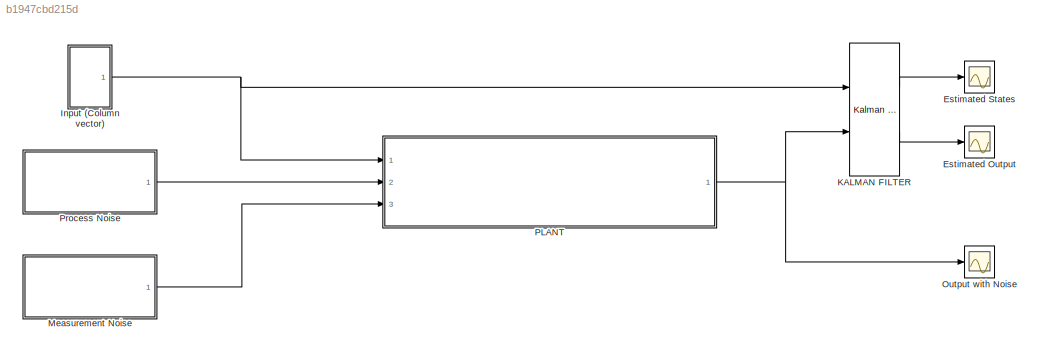
MODEL slx_b1947cbd215d
KIND model
CONFIG AbsTol = auto
CONFIG EnableMultiTasking = off
CONFIG FixedStep = auto
CONFIG MaxStep = auto
CONFIG MinStep = auto
CONFIG RelTol = 1e-3
CONFIG SampleTimeConstraint = Unconstrained
CONFIG SolverName = VariableStepAuto
CONFIG StartTime = 0.0
CONFIG StopTime = 10.0
BLOCK [Scope] Estimated Output
  Floating = off
  NumInputPorts = 1
  Ports = [1]
  ScopeSpecificationString = Simulink.scopes.TimeScopeBlockCfg('CurrentConfiguration', extmgr.ConfigurationSet(extmgr.Configuration('Core','General UI',true),extmgr.Configuration('Core','Source UI',true),extmgr.Configuration('Sources','WiredSimulink',true,'DataLoggingVariableName','ScopeData2'),extmgr.Configuration('Visuals','Time Domain',true,'SerializedDisplays',{struct('MinYLimReal','-1.27949','MaxYLimReal','11.26367','YLa...<+1633ch>
BLOCK [Scope] Estimated States
  Floating = off
  NameLocation = top
  NumInputPorts = 1
  Ports = [1]
  ScopeSpecificationString = Simulink.scopes.TimeScopeBlockCfg('CurrentConfiguration', extmgr.ConfigurationSet(extmgr.Configuration('Core','General UI',true),extmgr.Configuration('Core','Source UI',true),extmgr.Configuration('Sources','WiredSimulink',true,'DataLoggingVariableName','ScopeData1'),extmgr.Configuration('Visuals','Time Domain',true,'SerializedDisplays',{struct('MinYLimReal','-1.27949','MaxYLimReal','11.26367','YLa...<+1633ch>
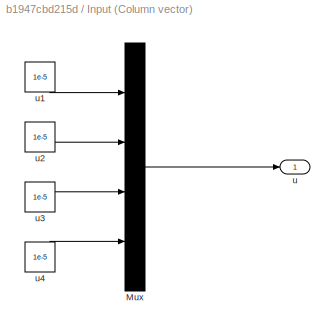
BLOCK [SubSystem] Input (Column vector)
  Ports = [0, 1]
  RequestExecContextInheritance = off
BLOCK [Mux] Input (Column vector)/Mux
  DisplayOption = bar
  Ports = [4, 1]
BLOCK [Outport] Input (Column vector)/u
BLOCK [Constant] Input (Column vector)/u1
  Value = 1e-5
BLOCK [Constant] Input (Column vector)/u2
  Value = 1e-5
BLOCK [Constant] Input (Column vector)/u3
  Value = 1e-5
BLOCK [Constant] Input (Column vector)/u4
  Value = 1e-5
BLOCK [Reference] KALMAN FILTER  REF=ctrlSharedLib/Kalman Filter
  Ports = [2, 2]
  SourceBlock = ctrlSharedLib/Kalman Filter
  SourceProductBaseCode = CT,ID
  SourceType = ctrlKalmanFilter
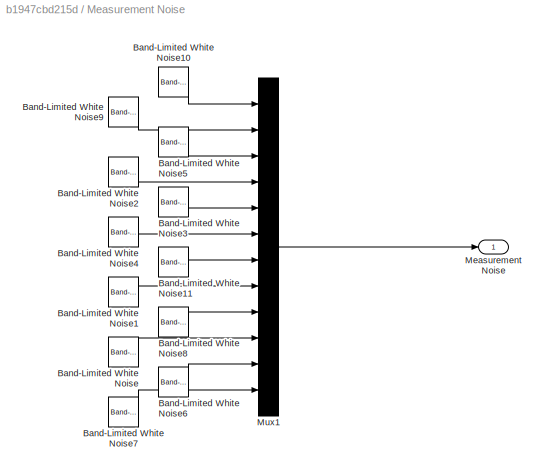
BLOCK [SubSystem] Measurement Noise
  Ports = [0, 1]
  RequestExecContextInheritance = off
BLOCK [Reference] Measurement Noise/Band-Limited White Noise  REF=simulink/Sources/Band-Limited
White Noise
  Ports = [0, 1]
  SourceBlock = simulink/Sources/Band-Limited\nWhite Noise
  SourceProductBaseCode = SL
  SourceType = Band-Limited White Noise.
BLOCK [Reference] Measurement Noise/Band-Limited White Noise1  REF=simulink/Sources/Band-Limited
White Noise
  Ports = [0, 1]
  SourceBlock = simulink/Sources/Band-Limited\nWhite Noise
  SourceProductBaseCode = SL
  SourceType = Band-Limited White Noise.
BLOCK [Reference] Measurement Noise/Band-Limited White Noise10  REF=simulink/Sources/Band-Limited
White Noise
  Ports = [0, 1]
  SourceBlock = simulink/Sources/Band-Limited\nWhite Noise
  SourceProductBaseCode = SL
  SourceType = Band-Limited White Noise.
BLOCK [Reference] Measurement Noise/Band-Limited White Noise11  REF=simulink/Sources/Band-Limited
White Noise
  Ports = [0, 1]
  SourceBlock = simulink/Sources/Band-Limited\nWhite Noise
  SourceProductBaseCode = SL
  SourceType = Band-Limited White Noise.
BLOCK [Reference] Measurement Noise/Band-Limited White Noise2  REF=simulink/Sources/Band-Limited
White Noise
  Ports = [0, 1]
  SourceBlock = simulink/Sources/Band-Limited\nWhite Noise
  SourceProductBaseCode = SL
  SourceType = Band-Limited White Noise.
BLOCK [Reference] Measurement Noise/Band-Limited White Noise3  REF=simulink/Sources/Band-Limited
White Noise
  Ports = [0, 1]
  SourceBlock = simulink/Sources/Band-Limited\nWhite Noise
  SourceProductBaseCode = SL
  SourceType = Band-Limited White Noise.
BLOCK [Reference] Measurement Noise/Band-Limited White Noise4  REF=simulink/Sources/Band-Limited
White Noise
  Ports = [0, 1]
  SourceBlock = simulink/Sources/Band-Limited\nWhite Noise
  SourceProductBaseCode = SL
  SourceType = Band-Limited White Noise.
BLOCK [Reference] Measurement Noise/Band-Limited White Noise5  REF=simulink/Sources/Band-Limited
White Noise
  Ports = [0, 1]
  SourceBlock = simulink/Sources/Band-Limited\nWhite Noise
  SourceProductBaseCode = SL
  SourceType = Band-Limited White Noise.
BLOCK [Reference] Measurement Noise/Band-Limited White Noise6  REF=simulink/Sources/Band-Limited
White Noise
  Ports = [0, 1]
  SourceBlock = simulink/Sources/Band-Limited\nWhite Noise
  SourceProductBaseCode = SL
  SourceType = Band-Limited White Noise.
BLOCK [Reference] Measurement Noise/Band-Limited White Noise7  REF=simulink/Sources/Band-Limited
White Noise
  Ports = [0, 1]
  SourceBlock = simulink/Sources/Band-Limited\nWhite Noise
  SourceProductBaseCode = SL
  SourceType = Band-Limited White Noise.
BLOCK [Reference] Measurement Noise/Band-Limited White Noise8  REF=simulink/Sources/Band-Limited
White Noise
  Ports = [0, 1]
  SourceBlock = simulink/Sources/Band-Limited\nWhite Noise
  SourceProductBaseCode = SL
  SourceType = Band-Limited White Noise.
BLOCK [Reference] Measurement Noise/Band-Limited White Noise9  REF=simulink/Sources/Band-Limited
White Noise
  Ports = [0, 1]
  SourceBlock = simulink/Sources/Band-Limited\nWhite Noise
  SourceProductBaseCode = SL
  SourceType = Band-Limited White Noise.
BLOCK [Outport] Measurement Noise/Measurement Noise
BLOCK [Mux] Measurement Noise/Mux1
  DisplayOption = bar
  Inputs = 12
  Ports = [12, 1]
BLOCK [Scope] Output with Noise
  Floating = off
  NumInputPorts = 1
  Ports = [1]
  ScopeSpecificationString = Simulink.scopes.TimeScopeBlockCfg('CurrentConfiguration', extmgr.ConfigurationSet(extmgr.Configuration('Core','General UI',true),extmgr.Configuration('Core','Source UI',true),extmgr.Configuration('Sources','WiredSimulink',true),extmgr.Configuration('Visuals','Time Domain',true,'SerializedDisplays',{struct('MinYLimReal','-1.39501','MaxYLimReal','11.37545','YLabelReal','','MinYLimMag','0.00000','Max...<+1474ch>
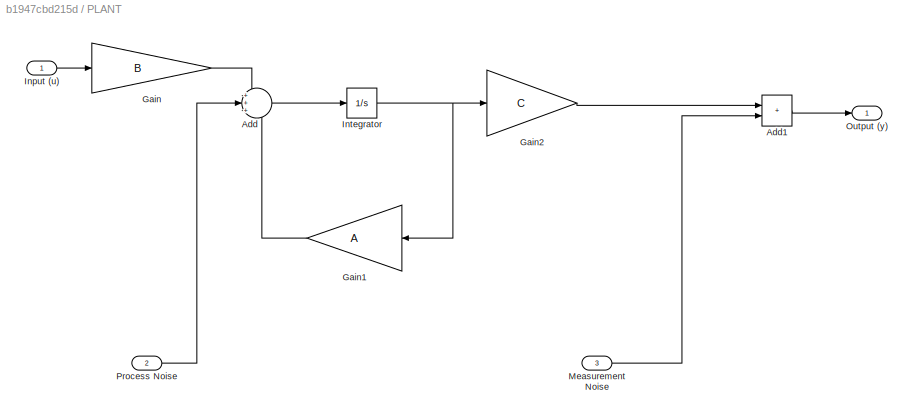
BLOCK [SubSystem] PLANT
  Ports = [3, 1]
  RequestExecContextInheritance = off
BLOCK [Sum] PLANT/Add
  Inputs = +++
  Ports = [3, 1]
BLOCK [Sum] PLANT/Add1
  IconShape = rectangular
  Ports = [2, 1]
BLOCK [Gain] PLANT/Gain
  Gain = B
  Multiplication = Matrix(K*u) (u vector)
BLOCK [Gain] PLANT/Gain1
  Gain = A
  Multiplication = Matrix(K*u) (u vector)
  NameLocation = top
BLOCK [Gain] PLANT/Gain2
  Gain = C
  Multiplication = Matrix(K*u) (u vector)
BLOCK [Inport] PLANT/Input (u)
BLOCK [Integrator] PLANT/Integrator
  InitialCondition = [0 0 0 0 10 0 0 0 0 0 7 0]
  Ports = [1, 1]
BLOCK [Inport] PLANT/Measurement Noise
  Port = 3
BLOCK [Outport] PLANT/Output (y)
BLOCK [Inport] PLANT/Process Noise
  Port = 2
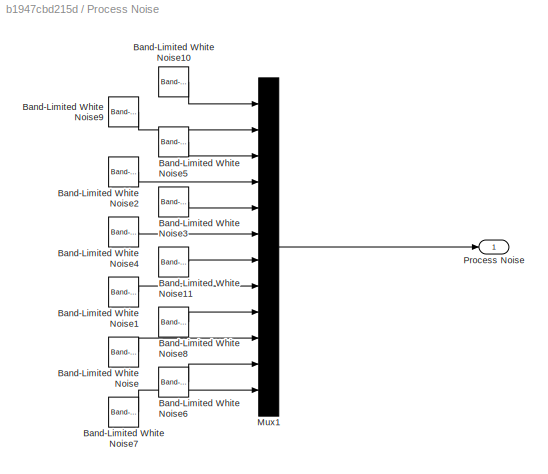
BLOCK [SubSystem] Process Noise
  Ports = [0, 1]
  RequestExecContextInheritance = off
BLOCK [Reference] Process Noise/Band-Limited White Noise  REF=simulink/Sources/Band-Limited
White Noise
  Ports = [0, 1]
  SourceBlock = simulink/Sources/Band-Limited\nWhite Noise
  SourceProductBaseCode = SL
  SourceType = Band-Limited White Noise.
BLOCK [Reference] Process Noise/Band-Limited White Noise1  REF=simulink/Sources/Band-Limited
White Noise
  Ports = [0, 1]
  SourceBlock = simulink/Sources/Band-Limited\nWhite Noise
  SourceProductBaseCode = SL
  SourceType = Band-Limited White Noise.
BLOCK [Reference] Process Noise/Band-Limited White Noise10  REF=simulink/Sources/Band-Limited
White Noise
  Ports = [0, 1]
  SourceBlock = simulink/Sources/Band-Limited\nWhite Noise
  SourceProductBaseCode = SL
  SourceType = Band-Limited White Noise.
BLOCK [Reference] Process Noise/Band-Limited White Noise11  REF=simulink/Sources/Band-Limited
White Noise
  Ports = [0, 1]
  SourceBlock = simulink/Sources/Band-Limited\nWhite Noise
  SourceProductBaseCode = SL
  SourceType = Band-Limited White Noise.
BLOCK [Reference] Process Noise/Band-Limited White Noise2  REF=simulink/Sources/Band-Limited
White Noise
  Ports = [0, 1]
  SourceBlock = simulink/Sources/Band-Limited\nWhite Noise
  SourceProductBaseCode = SL
  SourceType = Band-Limited White Noise.
BLOCK [Reference] Process Noise/Band-Limited White Noise3  REF=simulink/Sources/Band-Limited
White Noise
  Ports = [0, 1]
  SourceBlock = simulink/Sources/Band-Limited\nWhite Noise
  SourceProductBaseCode = SL
  SourceType = Band-Limited White Noise.
BLOCK [Reference] Process Noise/Band-Limited White Noise4  REF=simulink/Sources/Band-Limited
White Noise
  Ports = [0, 1]
  SourceBlock = simulink/Sources/Band-Limited\nWhite Noise
  SourceProductBaseCode = SL
  SourceType = Band-Limited White Noise.
BLOCK [Reference] Process Noise/Band-Limited White Noise5  REF=simulink/Sources/Band-Limited
White Noise
  Ports = [0, 1]
  SourceBlock = simulink/Sources/Band-Limited\nWhite Noise
  SourceProductBaseCode = SL
  SourceType = Band-Limited White Noise.
BLOCK [Reference] Process Noise/Band-Limited White Noise6  REF=simulink/Sources/Band-Limited
White Noise
  Ports = [0, 1]
  SourceBlock = simulink/Sources/Band-Limited\nWhite Noise
  SourceProductBaseCode = SL
  SourceType = Band-Limited White Noise.
BLOCK [Reference] Process Noise/Band-Limited White Noise7  REF=simulink/Sources/Band-Limited
White Noise
  Ports = [0, 1]
  SourceBlock = simulink/Sources/Band-Limited\nWhite Noise
  SourceProductBaseCode = SL
  SourceType = Band-Limited White Noise.
BLOCK [Reference] Process Noise/Band-Limited White Noise8  REF=simulink/Sources/Band-Limited
White Noise
  Ports = [0, 1]
  SourceBlock = simulink/Sources/Band-Limited\nWhite Noise
  SourceProductBaseCode = SL
  SourceType = Band-Limited White Noise.
BLOCK [Reference] Process Noise/Band-Limited White Noise9  REF=simulink/Sources/Band-Limited
White Noise
  Ports = [0, 1]
  SourceBlock = simulink/Sources/Band-Limited\nWhite Noise
  SourceProductBaseCode = SL
  SourceType = Band-Limited White Noise.
BLOCK [Mux] Process Noise/Mux1
  DisplayOption = bar
  Inputs = 12
  Ports = [12, 1]
BLOCK [Outport] Process Noise/Process Noise
LINE Input (Column vector)/Mux:1 -> Input (Column vector)/u:1
LINE Input (Column vector)/u1:1 -> Input (Column vector)/Mux:1
LINE Input (Column vector)/u2:1 -> Input (Column vector)/Mux:2
LINE Input (Column vector)/u3:1 -> Input (Column vector)/Mux:3
LINE Input (Column vector)/u4:1 -> Input (Column vector)/Mux:4
NET Input (Column vector):1 -> KALMAN FILTER:1, PLANT:1
LINE KALMAN FILTER:1 -> Estimated States:1
LINE KALMAN FILTER:2 -> Estimated Output:1
LINE Measurement Noise/Band-Limited White Noise10:1 -> Measurement Noise/Mux1:1
LINE Measurement Noise/Band-Limited White Noise11:1 -> Measurement Noise/Mux1:7
LINE Measurement Noise/Band-Limited White Noise1:1 -> Measurement Noise/Mux1:8
LINE Measurement Noise/Band-Limited White Noise2:1 -> Measurement Noise/Mux1:4
LINE Measurement Noise/Band-Limited White Noise3:1 -> Measurement Noise/Mux1:5
LINE Measurement Noise/Band-Limited White Noise4:1 -> Measurement Noise/Mux1:6
LINE Measurement Noise/Band-Limited White Noise5:1 -> Measurement Noise/Mux1:3
LINE Measurement Noise/Band-Limited White Noise6:1 -> Measurement Noise/Mux1:11
LINE Measurement Noise/Band-Limited White Noise7:1 -> Measurement Noise/Mux1:12
LINE Measurement Noise/Band-Limited White Noise8:1 -> Measurement Noise/Mux1:9
LINE Measurement Noise/Band-Limited White Noise9:1 -> Measurement Noise/Mux1:2
LINE Measurement Noise/Band-Limited White Noise:1 -> Measurement Noise/Mux1:10
LINE Measurement Noise/Mux1:1 -> Measurement Noise/Measurement Noise:1
LINE Measurement Noise:1 -> PLANT:3
LINE PLANT/Add1:1 -> PLANT/Output (y):1
LINE PLANT/Add:1 -> PLANT/Integrator:1
LINE PLANT/Gain1:1 -> PLANT/Add:3
LINE PLANT/Gain2:1 -> PLANT/Add1:1
LINE PLANT/Gain:1 -> PLANT/Add:1
LINE PLANT/Input (u):1 -> PLANT/Gain:1
NET PLANT/Integrator:1 -> PLANT/Gain1:1, PLANT/Gain2:1
LINE PLANT/Measurement Noise:1 -> PLANT/Add1:2
LINE PLANT/Process Noise:1 -> PLANT/Add:2
NET PLANT:1 -> KALMAN FILTER:2, Output with Noise:1
LINE Process Noise/Band-Limited White Noise10:1 -> Process Noise/Mux1:1
LINE Process Noise/Band-Limited White Noise11:1 -> Process Noise/Mux1:7
LINE Process Noise/Band-Limited White Noise1:1 -> Process Noise/Mux1:8
LINE Process Noise/Band-Limited White Noise2:1 -> Process Noise/Mux1:4
LINE Process Noise/Band-Limited White Noise3:1 -> Process Noise/Mux1:5
LINE Process Noise/Band-Limited White Noise4:1 -> Process Noise/Mux1:6
LINE Process Noise/Band-Limited White Noise5:1 -> Process Noise/Mux1:3
LINE Process Noise/Band-Limited White Noise6:1 -> Process Noise/Mux1:11
LINE Process Noise/Band-Limited White Noise7:1 -> Process Noise/Mux1:12
LINE Process Noise/Band-Limited White Noise8:1 -> Process Noise/Mux1:9
LINE Process Noise/Band-Limited White Noise9:1 -> Process Noise/Mux1:2
LINE Process Noise/Band-Limited White Noise:1 -> Process Noise/Mux1:10
LINE Process Noise/Mux1:1 -> Process Noise/Process Noise:1
LINE Process Noise:1 -> PLANT:2
note: NET lines group one-source signal fan-out (src -> all destinations, sorted); 1:1 wires keep LINE
